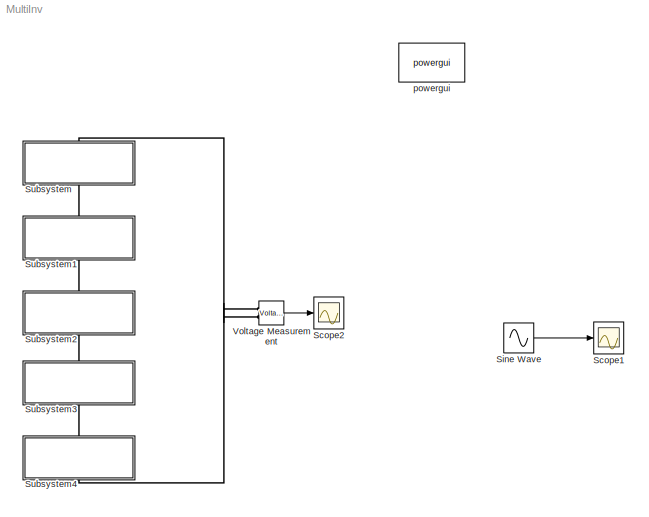
MODEL MultiInv
KIND model
BLOCK [Scope] Scope1
  DataFormat = StructureWithTime
  Floating = off
  MaxDataPoints = 5000000
  NumInputPorts = 1
  Ports = [1]
  SID = 317
  SampleTime = 0
  SaveName = sinwave
  SaveToWorkspace = on
BLOCK [Scope] Scope2
  DataFormat = StructureWithTime
  Floating = off
  MaxDataPoints = 5000000
  NumInputPorts = 1
  Ports = [1]
  SID = 282
  SampleTime = 0
  SaveName = OutVolt
  SaveToWorkspace = on
BLOCK [Sin] Sine Wave
  Amplitude = 60
  Frequency = 0.2*pi
  Ports = [0, 1]
  SID = 316
  SampleTime = 0
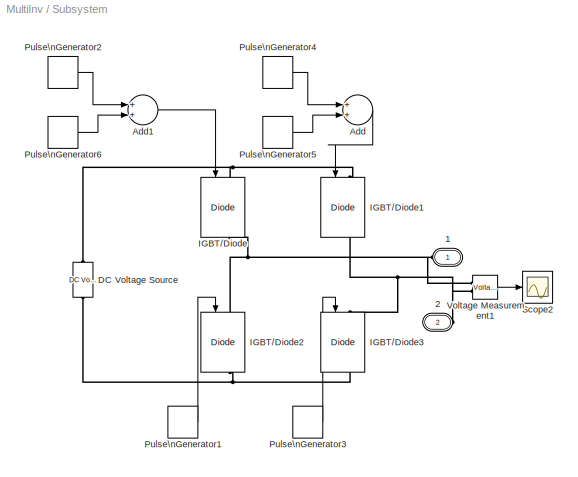
BLOCK [SubSystem] Subsystem
  FunctionWithSeparateData = off
  MaskHideContents = off
  MinAlgLoopOccurrences = off
  Opaque = off
  Ports = [0, 0, 0, 0, 0, 1, 1]
  PropExecContextOutsideSubsystem = off
  RTWSystemCode = Auto
  RequestExecContextInheritance = off
  SID = 202
BLOCK [PMIOPort] Subsystem/1
  Port = 1
  SID = 209
  Side = Left
  Tag = PMCPort
BLOCK [PMIOPort] Subsystem/2
  Port = 2
  SID = 210
  Side = Right
  Tag = PMCPort
BLOCK [Sum] Subsystem/Add
  InputSameDT = off
  OutDataTypeStr = Inherit: Inherit via internal rule
  Ports = [2, 1]
  SID = 176
  SaturateOnIntegerOverflow = off
BLOCK [Sum] Subsystem/Add1
  InputSameDT = off
  OutDataTypeStr = Inherit: Inherit via internal rule
  Ports = [2, 1]
  SID = 298
  SaturateOnIntegerOverflow = off
BLOCK [Reference] Subsystem/DC Voltage Source  REF=powerlib/Electrical\nSources/DC Voltage Source
  Amplitude = 12
  FunctionWithSeparateData = off
  GeneratePreprocessorConditionals = off
  Measurements = None
  Ports = [0, 0, 0, 0, 0, 1, 1]
  RTWMemSecDataConstants = Inherit from model
  RTWMemSecDataInternal = Inherit from model
  RTWMemSecDataParameters = Inherit from model
  RTWMemSecFuncExecute = Inherit from model
  RTWMemSecFuncInitTerm = Inherit from model
  SID = 122
  ShowPortLabels = FromPortIcon
  SourceBlock = powerlib/Electrical\nSources/DC Voltage Source
  SourceType = DC Voltage Source
  SystemSampleTime = -1
BLOCK [Reference] Subsystem/IGBT//Diode  REF=powerlib/Power\nElectronics/IGBT//Diode
  Cs = inf
  FunctionWithSeparateData = off
  GeneratePreprocessorConditionals = off
  Measurements = on
  Ports = [1, 1, 0, 0, 0, 1, 1]
  RTWMemSecDataConstants = Inherit from model
  RTWMemSecDataInternal = Inherit from model
  RTWMemSecDataParameters = Inherit from model
  RTWMemSecFuncExecute = Inherit from model
  RTWMemSecFuncInitTerm = Inherit from model
  Ron = 1e-3
  Rs = 1e5
  SID = 123
  ShowPortLabels = FromPortIcon
  SourceBlock = powerlib/Power\nElectronics/IGBT//Diode
  SourceType = IGBT/Diode
  SystemSampleTime = -1
BLOCK [Reference] Subsystem/IGBT//Diode1  REF=powerlib/Power\nElectronics/IGBT//Diode
  Cs = inf
  FunctionWithSeparateData = off
  GeneratePreprocessorConditionals = off
  Measurements = on
  Ports = [1, 1, 0, 0, 0, 1, 1]
  RTWMemSecDataConstants = Inherit from model
  RTWMemSecDataInternal = Inherit from model
  RTWMemSecDataParameters = Inherit from model
  RTWMemSecFuncExecute = Inherit from model
  RTWMemSecFuncInitTerm = Inherit from model
  Ron = 1e-3
  Rs = 1e5
  SID = 124
  ShowPortLabels = FromPortIcon
  SourceBlock = powerlib/Power\nElectronics/IGBT//Diode
  SourceType = IGBT/Diode
  SystemSampleTime = -1
BLOCK [Reference] Subsystem/IGBT//Diode2  REF=powerlib/Power\nElectronics/IGBT//Diode
  Cs = inf
  FunctionWithSeparateData = off
  GeneratePreprocessorConditionals = off
  Measurements = on
  Ports = [1, 1, 0, 0, 0, 1, 1]
  RTWMemSecDataConstants = Inherit from model
  RTWMemSecDataInternal = Inherit from model
  RTWMemSecDataParameters = Inherit from model
  RTWMemSecFuncExecute = Inherit from model
  RTWMemSecFuncInitTerm = Inherit from model
  Ron = 1e-3
  Rs = 1e5
  SID = 125
  ShowPortLabels = FromPortIcon
  SourceBlock = powerlib/Power\nElectronics/IGBT//Diode
  SourceType = IGBT/Diode
  SystemSampleTime = -1
BLOCK [Reference] Subsystem/IGBT//Diode3  REF=powerlib/Power\nElectronics/IGBT//Diode
  Cs = inf
  FunctionWithSeparateData = off
  GeneratePreprocessorConditionals = off
  Measurements = on
  Ports = [1, 1, 0, 0, 0, 1, 1]
  RTWMemSecDataConstants = Inherit from model
  RTWMemSecDataInternal = Inherit from model
  RTWMemSecDataParameters = Inherit from model
  RTWMemSecFuncExecute = Inherit from model
  RTWMemSecFuncInitTerm = Inherit from model
  Ron = 1e-3
  Rs = 1e5
  SID = 126
  ShowPortLabels = FromPortIcon
  SourceBlock = powerlib/Power\nElectronics/IGBT//Diode
  SourceType = IGBT/Diode
  SystemSampleTime = -1
BLOCK [DiscretePulseGenerator] Subsystem/Pulse\nGenerator1
  Period = t
  PhaseDelay = ((180+a)*t)/360
  Ports = [0, 1]
  PulseType = Time based
  PulseWidth = 50-((5*a)/9)
  SID = 128
BLOCK [DiscretePulseGenerator] Subsystem/Pulse\nGenerator2
  Period = t
  Ports = [0, 1]
  PulseType = Time based
  PulseWidth = 50+((5*a)/18)
  SID = 299
BLOCK [DiscretePulseGenerator] Subsystem/Pulse\nGenerator3
  Period = t
  PhaseDelay = (a*t)/360
  Ports = [0, 1]
  PulseType = Time based
  PulseWidth = 50-((5*a)/9)
  SID = 130
BLOCK [DiscretePulseGenerator] Subsystem/Pulse\nGenerator4
  Period = t
  Ports = [0, 1]
  PulseType = Time based
  PulseWidth = a/3.6
  SID = 177
BLOCK [DiscretePulseGenerator] Subsystem/Pulse\nGenerator5
  Period = t
  PhaseDelay = (180-a)*(t/360)
  Ports = [0, 1]
  PulseType = Time based
  PulseWidth = 50+((5*a)/18)
  SID = 178
BLOCK [DiscretePulseGenerator] Subsystem/Pulse\nGenerator6
  Period = t
  PhaseDelay = (360-a)*(t/360)
  Ports = [0, 1]
  PulseType = Time based
  PulseWidth = a/3.6
  SID = 300
BLOCK [Scope] Subsystem/Scope2
  DataFormat = StructureWithTime
  Floating = off
  NumInputPorts = 1
  Ports = [1]
  SID = 296
  SampleTime = 0
  SaveName = ScopeData6
  ZoomMode = yonly
BLOCK [Reference] Subsystem/Voltage Measurement1  REF=powerlib/Measurements/Voltage Measurement
  FunctionWithSeparateData = off
  GeneratePreprocessorConditionals = off
  OutputType = Complex
  PSBequivalent = 0
  PhasorSimulation = off
  Ports = [0, 1, 0, 0, 0, 2]
  RTWMemSecDataConstants = Inherit from model
  RTWMemSecDataInternal = Inherit from model
  RTWMemSecDataParameters = Inherit from model
  RTWMemSecFuncExecute = Inherit from model
  RTWMemSecFuncInitTerm = Inherit from model
  SID = 297
  ShowPortLabels = FromPortIcon
  SourceBlock = powerlib/Measurements/Voltage Measurement
  SourceType = Voltage Measurement
  SystemSampleTime = -1
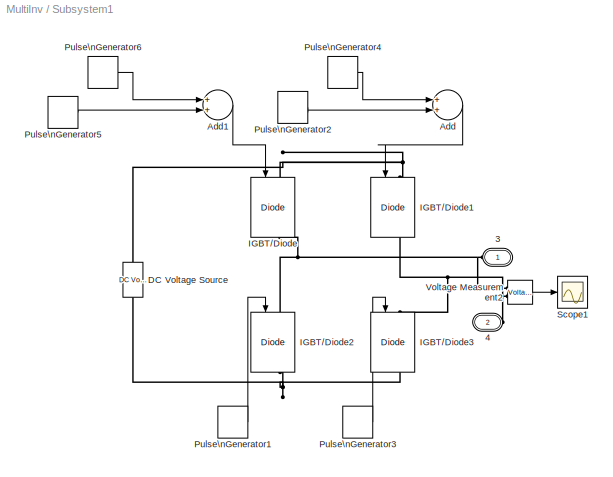
BLOCK [SubSystem] Subsystem1
  FunctionWithSeparateData = off
  MaskHideContents = off
  MinAlgLoopOccurrences = off
  Opaque = off
  Ports = [0, 0, 0, 0, 0, 1, 1]
  PropExecContextOutsideSubsystem = off
  RTWSystemCode = Auto
  RequestExecContextInheritance = off
  SID = 225
BLOCK [PMIOPort] Subsystem1/3
  Port = 1
  SID = 237
  Side = Left
  Tag = PMCPort
BLOCK [PMIOPort] Subsystem1/4
  Port = 2
  SID = 238
  Side = Right
  Tag = PMCPort
BLOCK [Sum] Subsystem1/Add
  InputSameDT = off
  OutDataTypeStr = Inherit: Inherit via internal rule
  Ports = [2, 1]
  SID = 226
  SaturateOnIntegerOverflow = off
BLOCK [Sum] Subsystem1/Add1
  InputSameDT = off
  OutDataTypeStr = Inherit: Inherit via internal rule
  Ports = [2, 1]
  SID = 304
  SaturateOnIntegerOverflow = off
BLOCK [Reference] Subsystem1/DC Voltage Source  REF=powerlib/Electrical\nSources/DC Voltage Source
  Amplitude = 12
  FunctionWithSeparateData = off
  GeneratePreprocessorConditionals = off
  Measurements = None
  Ports = [0, 0, 0, 0, 0, 1, 1]
  RTWMemSecDataConstants = Inherit from model
  RTWMemSecDataInternal = Inherit from model
  RTWMemSecDataParameters = Inherit from model
  RTWMemSecFuncExecute = Inherit from model
  RTWMemSecFuncInitTerm = Inherit from model
  SID = 227
  ShowPortLabels = FromPortIcon
  SourceBlock = powerlib/Electrical\nSources/DC Voltage Source
  SourceType = DC Voltage Source
  SystemSampleTime = -1
BLOCK [Reference] Subsystem1/IGBT//Diode  REF=powerlib/Power\nElectronics/IGBT//Diode
  Cs = inf
  FunctionWithSeparateData = off
  GeneratePreprocessorConditionals = off
  Measurements = on
  Ports = [1, 1, 0, 0, 0, 1, 1]
  RTWMemSecDataConstants = Inherit from model
  RTWMemSecDataInternal = Inherit from model
  RTWMemSecDataParameters = Inherit from model
  RTWMemSecFuncExecute = Inherit from model
  RTWMemSecFuncInitTerm = Inherit from model
  Ron = 1e-3
  Rs = 1e5
  SID = 228
  ShowPortLabels = FromPortIcon
  SourceBlock = powerlib/Power\nElectronics/IGBT//Diode
  SourceType = IGBT/Diode
  SystemSampleTime = -1
BLOCK [Reference] Subsystem1/IGBT//Diode1  REF=powerlib/Power\nElectronics/IGBT//Diode
  Cs = inf
  FunctionWithSeparateData = off
  GeneratePreprocessorConditionals = off
  Measurements = on
  Ports = [1, 1, 0, 0, 0, 1, 1]
  RTWMemSecDataConstants = Inherit from model
  RTWMemSecDataInternal = Inherit from model
  RTWMemSecDataParameters = Inherit from model
  RTWMemSecFuncExecute = Inherit from model
  RTWMemSecFuncInitTerm = Inherit from model
  Ron = 1e-3
  Rs = 1e5
  SID = 229
  ShowPortLabels = FromPortIcon
  SourceBlock = powerlib/Power\nElectronics/IGBT//Diode
  SourceType = IGBT/Diode
  SystemSampleTime = -1
BLOCK [Reference] Subsystem1/IGBT//Diode2  REF=powerlib/Power\nElectronics/IGBT//Diode
  Cs = inf
  FunctionWithSeparateData = off
  GeneratePreprocessorConditionals = off
  Measurements = on
  Ports = [1, 1, 0, 0, 0, 1, 1]
  RTWMemSecDataConstants = Inherit from model
  RTWMemSecDataInternal = Inherit from model
  RTWMemSecDataParameters = Inherit from model
  RTWMemSecFuncExecute = Inherit from model
  RTWMemSecFuncInitTerm = Inherit from model
  Ron = 1e-3
  Rs = 1e5
  SID = 230
  ShowPortLabels = FromPortIcon
  SourceBlock = powerlib/Power\nElectronics/IGBT//Diode
  SourceType = IGBT/Diode
  SystemSampleTime = -1
BLOCK [Reference] Subsystem1/IGBT//Diode3  REF=powerlib/Power\nElectronics/IGBT//Diode
  Cs = inf
  FunctionWithSeparateData = off
  GeneratePreprocessorConditionals = off
  Measurements = on
  Ports = [1, 1, 0, 0, 0, 1, 1]
  RTWMemSecDataConstants = Inherit from model
  RTWMemSecDataInternal = Inherit from model
  RTWMemSecDataParameters = Inherit from model
  RTWMemSecFuncExecute = Inherit from model
  RTWMemSecFuncInitTerm = Inherit from model
  Ron = 1e-3
  Rs = 1e5
  SID = 231
  ShowPortLabels = FromPortIcon
  SourceBlock = powerlib/Power\nElectronics/IGBT//Diode
  SourceType = IGBT/Diode
  SystemSampleTime = -1
BLOCK [DiscretePulseGenerator] Subsystem1/Pulse\nGenerator1
  Period = t
  PhaseDelay = ((180+b)*t)/360
  Ports = [0, 1]
  PulseType = Time based
  PulseWidth = 50-((5*b)/9)
  SID = 233
BLOCK [DiscretePulseGenerator] Subsystem1/Pulse\nGenerator2
  Period = t
  PhaseDelay = (180-b)*(t/360)
  Ports = [0, 1]
  PulseType = Time based
  PulseWidth = 50+((5*b)/18)
  SID = 236
BLOCK [DiscretePulseGenerator] Subsystem1/Pulse\nGenerator3
  Period = t
  PhaseDelay = (b*t)/360
  Ports = [0, 1]
  PulseType = Time based
  PulseWidth = 50-((5*b)/9)
  SID = 234
BLOCK [DiscretePulseGenerator] Subsystem1/Pulse\nGenerator4
  Period = t
  Ports = [0, 1]
  PulseType = Time based
  PulseWidth = b/3.6
  SID = 235
BLOCK [DiscretePulseGenerator] Subsystem1/Pulse\nGenerator5
  Period = t
  PhaseDelay = (360-b)*(t/360)
  Ports = [0, 1]
  PulseType = Time based
  PulseWidth = b/3.6
  SID = 305
BLOCK [DiscretePulseGenerator] Subsystem1/Pulse\nGenerator6
  Period = t
  Ports = [0, 1]
  PulseType = Time based
  PulseWidth = 50+((5*b)/18)
  SID = 306
BLOCK [Scope] Subsystem1/Scope1
  DataFormat = StructureWithTime
  Floating = off
  NumInputPorts = 1
  Ports = [1]
  SID = 294
  SampleTime = 0
  SaveName = ScopeData5
BLOCK [Reference] Subsystem1/Voltage Measurement2  REF=powerlib/Measurements/Voltage Measurement
  FunctionWithSeparateData = off
  GeneratePreprocessorConditionals = off
  OutputType = Complex
  PSBequivalent = 0
  PhasorSimulation = off
  Ports = [0, 1, 0, 0, 0, 2]
  RTWMemSecDataConstants = Inherit from model
  RTWMemSecDataInternal = Inherit from model
  RTWMemSecDataParameters = Inherit from model
  RTWMemSecFuncExecute = Inherit from model
  RTWMemSecFuncInitTerm = Inherit from model
  SID = 295
  ShowPortLabels = FromPortIcon
  SourceBlock = powerlib/Measurements/Voltage Measurement
  SourceType = Voltage Measurement
  SystemSampleTime = -1
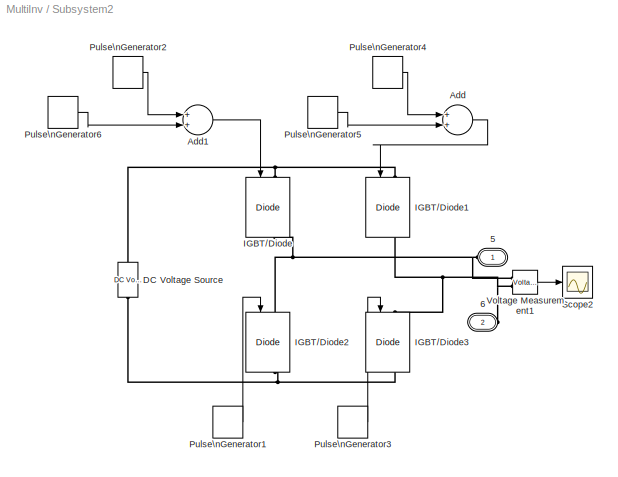
BLOCK [SubSystem] Subsystem2
  FunctionWithSeparateData = off
  MaskHideContents = off
  MinAlgLoopOccurrences = off
  Opaque = off
  Ports = [0, 0, 0, 0, 0, 1, 1]
  PropExecContextOutsideSubsystem = off
  RTWSystemCode = Auto
  RequestExecContextInheritance = off
  SID = 239
BLOCK [PMIOPort] Subsystem2/5
  Port = 1
  SID = 251
  Side = Left
  Tag = PMCPort
BLOCK [PMIOPort] Subsystem2/6
  Port = 2
  SID = 252
  Side = Right
  Tag = PMCPort
BLOCK [Sum] Subsystem2/Add
  InputSameDT = off
  OutDataTypeStr = Inherit: Inherit via internal rule
  Ports = [2, 1]
  SID = 240
  SaturateOnIntegerOverflow = off
BLOCK [Sum] Subsystem2/Add1
  InputSameDT = off
  OutDataTypeStr = Inherit: Inherit via internal rule
  Ports = [2, 1]
  SID = 307
  SaturateOnIntegerOverflow = off
BLOCK [Reference] Subsystem2/DC Voltage Source  REF=powerlib/Electrical\nSources/DC Voltage Source
  Amplitude = 12
  FunctionWithSeparateData = off
  GeneratePreprocessorConditionals = off
  Measurements = None
  Ports = [0, 0, 0, 0, 0, 1, 1]
  RTWMemSecDataConstants = Inherit from model
  RTWMemSecDataInternal = Inherit from model
  RTWMemSecDataParameters = Inherit from model
  RTWMemSecFuncExecute = Inherit from model
  RTWMemSecFuncInitTerm = Inherit from model
  SID = 241
  ShowPortLabels = FromPortIcon
  SourceBlock = powerlib/Electrical\nSources/DC Voltage Source
  SourceType = DC Voltage Source
  SystemSampleTime = -1
BLOCK [Reference] Subsystem2/IGBT//Diode  REF=powerlib/Power\nElectronics/IGBT//Diode
  Cs = inf
  FunctionWithSeparateData = off
  GeneratePreprocessorConditionals = off
  Measurements = on
  Ports = [1, 1, 0, 0, 0, 1, 1]
  RTWMemSecDataConstants = Inherit from model
  RTWMemSecDataInternal = Inherit from model
  RTWMemSecDataParameters = Inherit from model
  RTWMemSecFuncExecute = Inherit from model
  RTWMemSecFuncInitTerm = Inherit from model
  Ron = 1e-3
  Rs = 1e5
  SID = 242
  ShowPortLabels = FromPortIcon
  SourceBlock = powerlib/Power\nElectronics/IGBT//Diode
  SourceType = IGBT/Diode
  SystemSampleTime = -1
BLOCK [Reference] Subsystem2/IGBT//Diode1  REF=powerlib/Power\nElectronics/IGBT//Diode
  Cs = inf
  FunctionWithSeparateData = off
  GeneratePreprocessorConditionals = off
  Measurements = on
  Ports = [1, 1, 0, 0, 0, 1, 1]
  RTWMemSecDataConstants = Inherit from model
  RTWMemSecDataInternal = Inherit from model
  RTWMemSecDataParameters = Inherit from model
  RTWMemSecFuncExecute = Inherit from model
  RTWMemSecFuncInitTerm = Inherit from model
  Ron = 1e-3
  Rs = 1e5
  SID = 243
  ShowPortLabels = FromPortIcon
  SourceBlock = powerlib/Power\nElectronics/IGBT//Diode
  SourceType = IGBT/Diode
  SystemSampleTime = -1
BLOCK [Reference] Subsystem2/IGBT//Diode2  REF=powerlib/Power\nElectronics/IGBT//Diode
  Cs = inf
  FunctionWithSeparateData = off
  GeneratePreprocessorConditionals = off
  Measurements = on
  Ports = [1, 1, 0, 0, 0, 1, 1]
  RTWMemSecDataConstants = Inherit from model
  RTWMemSecDataInternal = Inherit from model
  RTWMemSecDataParameters = Inherit from model
  RTWMemSecFuncExecute = Inherit from model
  RTWMemSecFuncInitTerm = Inherit from model
  Ron = 1e-3
  Rs = 1e5
  SID = 244
  ShowPortLabels = FromPortIcon
  SourceBlock = powerlib/Power\nElectronics/IGBT//Diode
  SourceType = IGBT/Diode
  SystemSampleTime = -1
BLOCK [Reference] Subsystem2/IGBT//Diode3  REF=powerlib/Power\nElectronics/IGBT//Diode
  Cs = inf
  FunctionWithSeparateData = off
  GeneratePreprocessorConditionals = off
  Measurements = on
  Ports = [1, 1, 0, 0, 0, 1, 1]
  RTWMemSecDataConstants = Inherit from model
  RTWMemSecDataInternal = Inherit from model
  RTWMemSecDataParameters = Inherit from model
  RTWMemSecFuncExecute = Inherit from model
  RTWMemSecFuncInitTerm = Inherit from model
  Ron = 1e-3
  Rs = 1e5
  SID = 245
  ShowPortLabels = FromPortIcon
  SourceBlock = powerlib/Power\nElectronics/IGBT//Diode
  SourceType = IGBT/Diode
  SystemSampleTime = -1
BLOCK [DiscretePulseGenerator] Subsystem2/Pulse\nGenerator1
  Period = t
  PhaseDelay = ((180+c)*t)/360
  Ports = [0, 1]
  PulseType = Time based
  PulseWidth = 50-((5*c)/9)
  SID = 247
BLOCK [DiscretePulseGenerator] Subsystem2/Pulse\nGenerator2
  Period = t
  Ports = [0, 1]
  PulseType = Time based
  PulseWidth = 50+((5*c)/18)
  SID = 308
BLOCK [DiscretePulseGenerator] Subsystem2/Pulse\nGenerator3
  Period = t
  PhaseDelay = (c*t)/360
  Ports = [0, 1]
  PulseType = Time based
  PulseWidth = 50-((5*c)/9)
  SID = 248
BLOCK [DiscretePulseGenerator] Subsystem2/Pulse\nGenerator4
  Period = t
  Ports = [0, 1]
  PulseType = Time based
  PulseWidth = c/3.6
  SID = 249
BLOCK [DiscretePulseGenerator] Subsystem2/Pulse\nGenerator5
  Period = t
  PhaseDelay = (180-c)*(t/360)
  Ports = [0, 1]
  PulseType = Time based
  PulseWidth = 50+((5*c)/18)
  SID = 250
BLOCK [DiscretePulseGenerator] Subsystem2/Pulse\nGenerator6
  Period = t
  PhaseDelay = (360-c)*(t/360)
  Ports = [0, 1]
  PulseType = Time based
  PulseWidth = c/3.6
  SID = 309
BLOCK [Scope] Subsystem2/Scope2
  DataFormat = StructureWithTime
  Floating = off
  NumInputPorts = 1
  Ports = [1]
  SID = 290
  SampleTime = 0
  SaveName = ScopeData3
BLOCK [Reference] Subsystem2/Voltage Measurement1  REF=powerlib/Measurements/Voltage Measurement
  FunctionWithSeparateData = off
  GeneratePreprocessorConditionals = off
  OutputType = Complex
  PSBequivalent = 0
  PhasorSimulation = off
  Ports = [0, 1, 0, 0, 0, 2]
  RTWMemSecDataConstants = Inherit from model
  RTWMemSecDataInternal = Inherit from model
  RTWMemSecDataParameters = Inherit from model
  RTWMemSecFuncExecute = Inherit from model
  RTWMemSecFuncInitTerm = Inherit from model
  SID = 291
  ShowPortLabels = FromPortIcon
  SourceBlock = powerlib/Measurements/Voltage Measurement
  SourceType = Voltage Measurement
  SystemSampleTime = -1
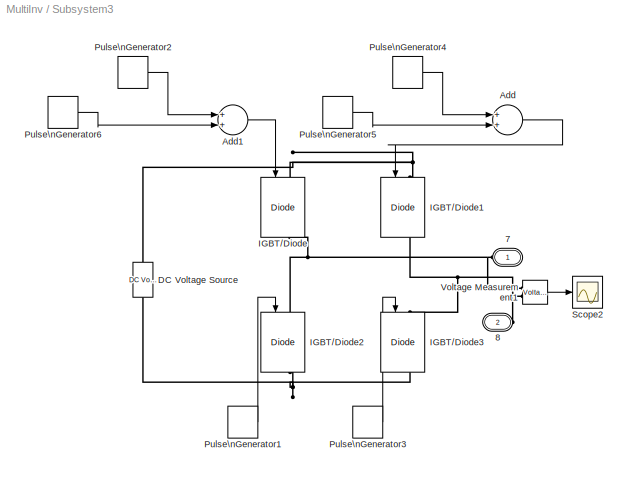
BLOCK [SubSystem] Subsystem3
  FunctionWithSeparateData = off
  MaskHideContents = off
  MinAlgLoopOccurrences = off
  Opaque = off
  Ports = [0, 0, 0, 0, 0, 1, 1]
  PropExecContextOutsideSubsystem = off
  RTWSystemCode = Auto
  RequestExecContextInheritance = off
  SID = 253
BLOCK [PMIOPort] Subsystem3/7
  Port = 1
  SID = 265
  Side = Left
  Tag = PMCPort
BLOCK [PMIOPort] Subsystem3/8
  Port = 2
  SID = 266
  Side = Right
  Tag = PMCPort
BLOCK [Sum] Subsystem3/Add
  InputSameDT = off
  OutDataTypeStr = Inherit: Inherit via internal rule
  Ports = [2, 1]
  SID = 254
  SaturateOnIntegerOverflow = off
BLOCK [Sum] Subsystem3/Add1
  InputSameDT = off
  OutDataTypeStr = Inherit: Inherit via internal rule
  Ports = [2, 1]
  SID = 310
  SaturateOnIntegerOverflow = off
BLOCK [Reference] Subsystem3/DC Voltage Source  REF=powerlib/Electrical\nSources/DC Voltage Source
  Amplitude = 12
  FunctionWithSeparateData = off
  GeneratePreprocessorConditionals = off
  Measurements = None
  Ports = [0, 0, 0, 0, 0, 1, 1]
  RTWMemSecDataConstants = Inherit from model
  RTWMemSecDataInternal = Inherit from model
  RTWMemSecDataParameters = Inherit from model
  RTWMemSecFuncExecute = Inherit from model
  RTWMemSecFuncInitTerm = Inherit from model
  SID = 255
  ShowPortLabels = FromPortIcon
  SourceBlock = powerlib/Electrical\nSources/DC Voltage Source
  SourceType = DC Voltage Source
  SystemSampleTime = -1
BLOCK [Reference] Subsystem3/IGBT//Diode  REF=powerlib/Power\nElectronics/IGBT//Diode
  Cs = inf
  FunctionWithSeparateData = off
  GeneratePreprocessorConditionals = off
  Measurements = on
  Ports = [1, 1, 0, 0, 0, 1, 1]
  RTWMemSecDataConstants = Inherit from model
  RTWMemSecDataInternal = Inherit from model
  RTWMemSecDataParameters = Inherit from model
  RTWMemSecFuncExecute = Inherit from model
  RTWMemSecFuncInitTerm = Inherit from model
  Ron = 1e-3
  Rs = 1e5
  SID = 256
  ShowPortLabels = FromPortIcon
  SourceBlock = powerlib/Power\nElectronics/IGBT//Diode
  SourceType = IGBT/Diode
  SystemSampleTime = -1
BLOCK [Reference] Subsystem3/IGBT//Diode1  REF=powerlib/Power\nElectronics/IGBT//Diode
  Cs = inf
  FunctionWithSeparateData = off
  GeneratePreprocessorConditionals = off
  Measurements = on
  Ports = [1, 1, 0, 0, 0, 1, 1]
  RTWMemSecDataConstants = Inherit from model
  RTWMemSecDataInternal = Inherit from model
  RTWMemSecDataParameters = Inherit from model
  RTWMemSecFuncExecute = Inherit from model
  RTWMemSecFuncInitTerm = Inherit from model
  Ron = 1e-3
  Rs = 1e5
  SID = 257
  ShowPortLabels = FromPortIcon
  SourceBlock = powerlib/Power\nElectronics/IGBT//Diode
  SourceType = IGBT/Diode
  SystemSampleTime = -1
BLOCK [Reference] Subsystem3/IGBT//Diode2  REF=powerlib/Power\nElectronics/IGBT//Diode
  Cs = inf
  FunctionWithSeparateData = off
  GeneratePreprocessorConditionals = off
  Measurements = on
  Ports = [1, 1, 0, 0, 0, 1, 1]
  RTWMemSecDataConstants = Inherit from model
  RTWMemSecDataInternal = Inherit from model
  RTWMemSecDataParameters = Inherit from model
  RTWMemSecFuncExecute = Inherit from model
  RTWMemSecFuncInitTerm = Inherit from model
  Ron = 1e-3
  Rs = 1e5
  SID = 258
  ShowPortLabels = FromPortIcon
  SourceBlock = powerlib/Power\nElectronics/IGBT//Diode
  SourceType = IGBT/Diode
  SystemSampleTime = -1
BLOCK [Reference] Subsystem3/IGBT//Diode3  REF=powerlib/Power\nElectronics/IGBT//Diode
  Cs = inf
  FunctionWithSeparateData = off
  GeneratePreprocessorConditionals = off
  Measurements = on
  Ports = [1, 1, 0, 0, 0, 1, 1]
  RTWMemSecDataConstants = Inherit from model
  RTWMemSecDataInternal = Inherit from model
  RTWMemSecDataParameters = Inherit from model
  RTWMemSecFuncExecute = Inherit from model
  RTWMemSecFuncInitTerm = Inherit from model
  Ron = 1e-3
  Rs = 1e5
  SID = 259
  ShowPortLabels = FromPortIcon
  SourceBlock = powerlib/Power\nElectronics/IGBT//Diode
  SourceType = IGBT/Diode
  SystemSampleTime = -1
BLOCK [DiscretePulseGenerator] Subsystem3/Pulse\nGenerator1
  Period = t
  PhaseDelay = ((180+d)*t)/360
  Ports = [0, 1]
  PulseType = Time based
  PulseWidth = 50-((5*d)/9)
  SID = 261
BLOCK [DiscretePulseGenerator] Subsystem3/Pulse\nGenerator2
  Period = t
  Ports = [0, 1]
  PulseType = Time based
  PulseWidth = 50+((5*d)/18)
  SID = 311
BLOCK [DiscretePulseGenerator] Subsystem3/Pulse\nGenerator3
  Period = t
  PhaseDelay = (d*t)/360
  Ports = [0, 1]
  PulseType = Time based
  PulseWidth = 50-((5*d)/9)
  SID = 262
BLOCK [DiscretePulseGenerator] Subsystem3/Pulse\nGenerator4
  Period = t
  Ports = [0, 1]
  PulseType = Time based
  PulseWidth = d/3.6
  SID = 263
BLOCK [DiscretePulseGenerator] Subsystem3/Pulse\nGenerator5
  Period = t
  PhaseDelay = (180-d)*(t/360)
  Ports = [0, 1]
  PulseType = Time based
  PulseWidth = 50+((5*d)/18)
  SID = 264
BLOCK [DiscretePulseGenerator] Subsystem3/Pulse\nGenerator6
  Period = t
  PhaseDelay = (360-d)*(t/360)
  Ports = [0, 1]
  PulseType = Time based
  PulseWidth = d/3.6
  SID = 312
BLOCK [Scope] Subsystem3/Scope2
  DataFormat = StructureWithTime
  Floating = off
  NumInputPorts = 1
  Ports = [1]
  SID = 286
  SampleTime = 0
  SaveName = ScopeData2
BLOCK [Reference] Subsystem3/Voltage Measurement1  REF=powerlib/Measurements/Voltage Measurement
  FunctionWithSeparateData = off
  GeneratePreprocessorConditionals = off
  OutputType = Complex
  PSBequivalent = 0
  PhasorSimulation = off
  Ports = [0, 1, 0, 0, 0, 2]
  RTWMemSecDataConstants = Inherit from model
  RTWMemSecDataInternal = Inherit from model
  RTWMemSecDataParameters = Inherit from model
  RTWMemSecFuncExecute = Inherit from model
  RTWMemSecFuncInitTerm = Inherit from model
  SID = 287
  ShowPortLabels = FromPortIcon
  SourceBlock = powerlib/Measurements/Voltage Measurement
  SourceType = Voltage Measurement
  SystemSampleTime = -1
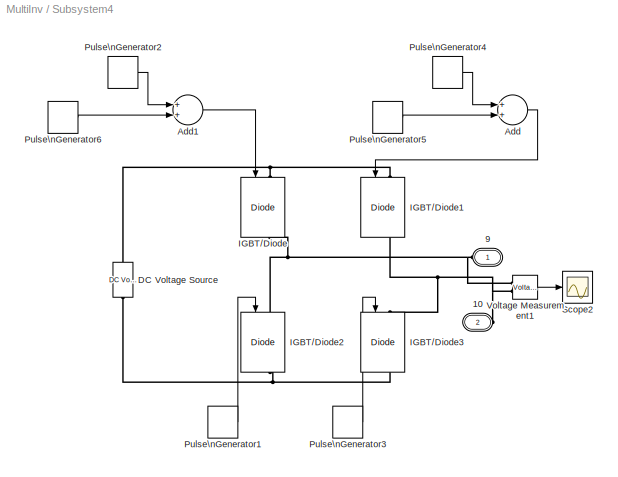
BLOCK [SubSystem] Subsystem4
  FunctionWithSeparateData = off
  MaskHideContents = off
  MinAlgLoopOccurrences = off
  Opaque = off
  Ports = [0, 0, 0, 0, 0, 1, 1]
  PropExecContextOutsideSubsystem = off
  RTWSystemCode = Auto
  RequestExecContextInheritance = off
  SID = 267
BLOCK [PMIOPort] Subsystem4/10
  Port = 2
  SID = 280
  Side = Right
  Tag = PMCPort
BLOCK [PMIOPort] Subsystem4/9
  Port = 1
  SID = 279
  Side = Left
  Tag = PMCPort
BLOCK [Sum] Subsystem4/Add
  InputSameDT = off
  OutDataTypeStr = Inherit: Inherit via internal rule
  Ports = [2, 1]
  SID = 268
  SaturateOnIntegerOverflow = off
BLOCK [Sum] Subsystem4/Add1
  InputSameDT = off
  OutDataTypeStr = Inherit: Inherit via internal rule
  Ports = [2, 1]
  SID = 313
  SaturateOnIntegerOverflow = off
BLOCK [Reference] Subsystem4/DC Voltage Source  REF=powerlib/Electrical\nSources/DC Voltage Source
  Amplitude = 12
  FunctionWithSeparateData = off
  GeneratePreprocessorConditionals = off
  Measurements = None
  Ports = [0, 0, 0, 0, 0, 1, 1]
  RTWMemSecDataConstants = Inherit from model
  RTWMemSecDataInternal = Inherit from model
  RTWMemSecDataParameters = Inherit from model
  RTWMemSecFuncExecute = Inherit from model
  RTWMemSecFuncInitTerm = Inherit from model
  SID = 269
  ShowPortLabels = FromPortIcon
  SourceBlock = powerlib/Electrical\nSources/DC Voltage Source
  SourceType = DC Voltage Source
  SystemSampleTime = -1
BLOCK [Reference] Subsystem4/IGBT//Diode  REF=powerlib/Power\nElectronics/IGBT//Diode
  Cs = inf
  FunctionWithSeparateData = off
  GeneratePreprocessorConditionals = off
  Measurements = on
  Ports = [1, 1, 0, 0, 0, 1, 1]
  RTWMemSecDataConstants = Inherit from model
  RTWMemSecDataInternal = Inherit from model
  RTWMemSecDataParameters = Inherit from model
  RTWMemSecFuncExecute = Inherit from model
  RTWMemSecFuncInitTerm = Inherit from model
  Ron = 1e-3
  Rs = 1e5
  SID = 270
  ShowPortLabels = FromPortIcon
  SourceBlock = powerlib/Power\nElectronics/IGBT//Diode
  SourceType = IGBT/Diode
  SystemSampleTime = -1
BLOCK [Reference] Subsystem4/IGBT//Diode1  REF=powerlib/Power\nElectronics/IGBT//Diode
  Cs = inf
  FunctionWithSeparateData = off
  GeneratePreprocessorConditionals = off
  Measurements = on
  Ports = [1, 1, 0, 0, 0, 1, 1]
  RTWMemSecDataConstants = Inherit from model
  RTWMemSecDataInternal = Inherit from model
  RTWMemSecDataParameters = Inherit from model
  RTWMemSecFuncExecute = Inherit from model
  RTWMemSecFuncInitTerm = Inherit from model
  Ron = 1e-3
  Rs = 1e5
  SID = 271
  ShowPortLabels = FromPortIcon
  SourceBlock = powerlib/Power\nElectronics/IGBT//Diode
  SourceType = IGBT/Diode
  SystemSampleTime = -1
BLOCK [Reference] Subsystem4/IGBT//Diode2  REF=powerlib/Power\nElectronics/IGBT//Diode
  Cs = inf
  FunctionWithSeparateData = off
  GeneratePreprocessorConditionals = off
  Measurements = on
  Ports = [1, 1, 0, 0, 0, 1, 1]
  RTWMemSecDataConstants = Inherit from model
  RTWMemSecDataInternal = Inherit from model
  RTWMemSecDataParameters = Inherit from model
  RTWMemSecFuncExecute = Inherit from model
  RTWMemSecFuncInitTerm = Inherit from model
  Ron = 1e-3
  Rs = 1e5
  SID = 272
  ShowPortLabels = FromPortIcon
  SourceBlock = powerlib/Power\nElectronics/IGBT//Diode
  SourceType = IGBT/Diode
  SystemSampleTime = -1
BLOCK [Reference] Subsystem4/IGBT//Diode3  REF=powerlib/Power\nElectronics/IGBT//Diode
  Cs = inf
  FunctionWithSeparateData = off
  GeneratePreprocessorConditionals = off
  Measurements = on
  Ports = [1, 1, 0, 0, 0, 1, 1]
  RTWMemSecDataConstants = Inherit from model
  RTWMemSecDataInternal = Inherit from model
  RTWMemSecDataParameters = Inherit from model
  RTWMemSecFuncExecute = Inherit from model
  RTWMemSecFuncInitTerm = Inherit from model
  Ron = 1e-3
  Rs = 1e5
  SID = 273
  ShowPortLabels = FromPortIcon
  SourceBlock = powerlib/Power\nElectronics/IGBT//Diode
  SourceType = IGBT/Diode
  SystemSampleTime = -1
BLOCK [DiscretePulseGenerator] Subsystem4/Pulse\nGenerator1
  Period = t
  PhaseDelay = ((180+e)*t)/360
  Ports = [0, 1]
  PulseType = Time based
  PulseWidth = 50-((5*e)/9)
  SID = 275
BLOCK [DiscretePulseGenerator] Subsystem4/Pulse\nGenerator2
  Period = t
  Ports = [0, 1]
  PulseType = Time based
  PulseWidth = 50+((5*e)/18)
  SID = 314
BLOCK [DiscretePulseGenerator] Subsystem4/Pulse\nGenerator3
  Period = t
  PhaseDelay = (e*t)/360
  Ports = [0, 1]
  PulseType = Time based
  PulseWidth = 50-((5*e)/9)
  SID = 276
BLOCK [DiscretePulseGenerator] Subsystem4/Pulse\nGenerator4
  Period = t
  Ports = [0, 1]
  PulseType = Time based
  PulseWidth = e/3.6
  SID = 277
BLOCK [DiscretePulseGenerator] Subsystem4/Pulse\nGenerator5
  Period = t
  PhaseDelay = (180-e)*(t/360)
  Ports = [0, 1]
  PulseType = Time based
  PulseWidth = 50+((5*e)/18)
  SID = 278
BLOCK [DiscretePulseGenerator] Subsystem4/Pulse\nGenerator6
  Period = t
  PhaseDelay = (360-e)*(t/360)
  Ports = [0, 1]
  PulseType = Time based
  PulseWidth = e/3.6
  SID = 315
BLOCK [Scope] Subsystem4/Scope2
  DataFormat = StructureWithTime
  Floating = off
  NumInputPorts = 1
  Ports = [1]
  SID = 285
  SampleTime = 0
  SaveName = ScopeData1
BLOCK [Reference] Subsystem4/Voltage Measurement1  REF=powerlib/Measurements/Voltage Measurement
  FunctionWithSeparateData = off
  GeneratePreprocessorConditionals = off
  OutputType = Complex
  PSBequivalent = 0
  PhasorSimulation = off
  Ports = [0, 1, 0, 0, 0, 2]
  RTWMemSecDataConstants = Inherit from model
  RTWMemSecDataInternal = Inherit from model
  RTWMemSecDataParameters = Inherit from model
  RTWMemSecFuncExecute = Inherit from model
  RTWMemSecFuncInitTerm = Inherit from model
  SID = 284
  ShowPortLabels = FromPortIcon
  SourceBlock = powerlib/Measurements/Voltage Measurement
  SourceType = Voltage Measurement
  SystemSampleTime = -1
BLOCK [Reference] Voltage Measurement  REF=powerlib/Measurements/Voltage Measurement
  FunctionWithSeparateData = off
  GeneratePreprocessorConditionals = off
  OutputType = Complex
  PSBequivalent = 0
  PhasorSimulation = off
  Ports = [0, 1, 0, 0, 0, 2]
  RTWMemSecDataConstants = Inherit from model
  RTWMemSecDataInternal = Inherit from model
  RTWMemSecDataParameters = Inherit from model
  RTWMemSecFuncExecute = Inherit from model
  RTWMemSecFuncInitTerm = Inherit from model
  SID = 281
  ShowPortLabels = FromPortIcon
  SourceBlock = powerlib/Measurements/Voltage Measurement
  SourceType = Voltage Measurement
  SystemSampleTime = -1
BLOCK [Reference] powergui  REF=powerlib/powergui
  DisableRonSwitches = off
  DisableSnubberDevices = off
  DisableVfSwitches = off
  DisplayEquations = off
  DisplayStyle = 2
  EnableUseOfTLC = off
  ErrMax = 1e-4
  FreqAxis = off
  FunctionMessages = off
  FunctionWithSeparateData = off
  GeneratePreprocessorConditionals = off
  HookPort = off
  Interpol = off
  Iterations = 50
  MaxFrequency = 1000
  Pbase = 100e6
  Ports = []
  Priority = 1
  RTWMemSecDataConstants = Inherit from model
  RTWMemSecDataInternal = Inherit from model
  RTWMemSecDataParameters = Inherit from model
  RTWMemSecFuncExecute = Inherit from model
  RTWMemSecFuncInitTerm = Inherit from model
  ResistiveCurrentMeasurement = off
  RestoreLinks = warning
  SID = 13
  SPID = off
  SampleTime = 50e-6
  ShowGrid = off
  ShowPortLabels = FromPortIcon
  SourceBlock = powerlib/powergui
  SourceType = PSB option menu block
  StartTime = 0.01
  SwTol = 0
  SystemSampleTime = -1
  UnitsV = kV
  UnitsW = MW
  UserData = DataTag0
  UserDataPersistent = on
  Xlog = on
  Ylog = off
  ZoomFFT = off
  cycles = 2
  display = off
  echomessages = off
  frequency = 60
  frequencyindice = 0
  frequencyindicesteady = 1
  fundamental = 50
  methode = off
  save = off
  structure = OutVolt
  variable = ZData
  x0status = blocks
LINE Sine Wave:1 -> Scope1:1
LINE Subsystem/Add1:1 -> Subsystem/IGBT//Diode:1
LINE Subsystem/Add:1 -> Subsystem/IGBT//Diode1:1
LINE Subsystem/Pulse\nGenerator1:1 -> Subsystem/IGBT//Diode2:1
LINE Subsystem/Pulse\nGenerator2:1 -> Subsystem/Add1:1
LINE Subsystem/Pulse\nGenerator3:1 -> Subsystem/IGBT//Diode3:1
LINE Subsystem/Pulse\nGenerator4:1 -> Subsystem/Add:1
LINE Subsystem/Pulse\nGenerator5:1 -> Subsystem/Add:2
LINE Subsystem/Pulse\nGenerator6:1 -> Subsystem/Add1:2
LINE Subsystem/Voltage Measurement1:1 -> Subsystem/Scope2:1
LINE Subsystem1/Add1:1 -> Subsystem1/IGBT//Diode:1
LINE Subsystem1/Add:1 -> Subsystem1/IGBT//Diode1:1
LINE Subsystem1/Pulse\nGenerator1:1 -> Subsystem1/IGBT//Diode2:1
LINE Subsystem1/Pulse\nGenerator2:1 -> Subsystem1/Add:2
LINE Subsystem1/Pulse\nGenerator3:1 -> Subsystem1/IGBT//Diode3:1
LINE Subsystem1/Pulse\nGenerator4:1 -> Subsystem1/Add:1
LINE Subsystem1/Pulse\nGenerator5:1 -> Subsystem1/Add1:2
LINE Subsystem1/Pulse\nGenerator6:1 -> Subsystem1/Add1:1
LINE Subsystem1/Voltage Measurement2:1 -> Subsystem1/Scope1:1
LINE Subsystem2/Add1:1 -> Subsystem2/IGBT//Diode:1
LINE Subsystem2/Add:1 -> Subsystem2/IGBT//Diode1:1
LINE Subsystem2/Pulse\nGenerator1:1 -> Subsystem2/IGBT//Diode2:1
LINE Subsystem2/Pulse\nGenerator2:1 -> Subsystem2/Add1:1
LINE Subsystem2/Pulse\nGenerator3:1 -> Subsystem2/IGBT//Diode3:1
LINE Subsystem2/Pulse\nGenerator4:1 -> Subsystem2/Add:1
LINE Subsystem2/Pulse\nGenerator5:1 -> Subsystem2/Add:2
LINE Subsystem2/Pulse\nGenerator6:1 -> Subsystem2/Add1:2
LINE Subsystem2/Voltage Measurement1:1 -> Subsystem2/Scope2:1
LINE Subsystem3/Add1:1 -> Subsystem3/IGBT//Diode:1
LINE Subsystem3/Add:1 -> Subsystem3/IGBT//Diode1:1
LINE Subsystem3/Pulse\nGenerator1:1 -> Subsystem3/IGBT//Diode2:1
LINE Subsystem3/Pulse\nGenerator2:1 -> Subsystem3/Add1:1
LINE Subsystem3/Pulse\nGenerator3:1 -> Subsystem3/IGBT//Diode3:1
LINE Subsystem3/Pulse\nGenerator4:1 -> Subsystem3/Add:1
LINE Subsystem3/Pulse\nGenerator5:1 -> Subsystem3/Add:2
LINE Subsystem3/Pulse\nGenerator6:1 -> Subsystem3/Add1:2
LINE Subsystem3/Voltage Measurement1:1 -> Subsystem3/Scope2:1
LINE Subsystem4/Add1:1 -> Subsystem4/IGBT//Diode:1
LINE Subsystem4/Add:1 -> Subsystem4/IGBT//Diode1:1
LINE Subsystem4/Pulse\nGenerator1:1 -> Subsystem4/IGBT//Diode2:1
LINE Subsystem4/Pulse\nGenerator2:1 -> Subsystem4/Add1:1
LINE Subsystem4/Pulse\nGenerator3:1 -> Subsystem4/IGBT//Diode3:1
LINE Subsystem4/Pulse\nGenerator4:1 -> Subsystem4/Add:1
LINE Subsystem4/Pulse\nGenerator5:1 -> Subsystem4/Add:2
LINE Subsystem4/Pulse\nGenerator6:1 -> Subsystem4/Add1:2
LINE Subsystem4/Voltage Measurement1:1 -> Subsystem4/Scope2:1
LINE Voltage Measurement:1 -> Scope2:1
PNET net1: Subsystem/1:RConn1 -- Subsystem/IGBT//Diode2:LConn1 -- Subsystem/IGBT//Diode:RConn1 -- Subsystem/Voltage Measurement1:LConn1
PNET net2: Subsystem/2:RConn1 -- Subsystem/IGBT//Diode1:RConn1 -- Subsystem/IGBT//Diode3:LConn1 -- Subsystem/Voltage Measurement1:LConn2
PNET net3: Subsystem/DC Voltage Source:LConn1 -- Subsystem/IGBT//Diode2:RConn1 -- Subsystem/IGBT//Diode3:RConn1
PNET net4: Subsystem/DC Voltage Source:RConn1 -- Subsystem/IGBT//Diode1:LConn1 -- Subsystem/IGBT//Diode:LConn1
PNET net5: Subsystem1/3:RConn1 -- Subsystem1/IGBT//Diode2:LConn1 -- Subsystem1/IGBT//Diode:RConn1 -- Subsystem1/Voltage Measurement2:LConn1
PNET net6: Subsystem1/4:RConn1 -- Subsystem1/IGBT//Diode1:RConn1 -- Subsystem1/IGBT//Diode3:LConn1 -- Subsystem1/Voltage Measurement2:LConn2
PNET net7: Subsystem1/DC Voltage Source:LConn1 -- Subsystem1/IGBT//Diode2:RConn1 -- Subsystem1/IGBT//Diode3:RConn1
PNET net8: Subsystem1/DC Voltage Source:RConn1 -- Subsystem1/IGBT//Diode1:LConn1 -- Subsystem1/IGBT//Diode:LConn1
PLINE Subsystem1:LConn1 -- Subsystem:RConn1
PLINE Subsystem1:RConn1 -- Subsystem2:LConn1
PNET net9: Subsystem2/5:RConn1 -- Subsystem2/IGBT//Diode2:LConn1 -- Subsystem2/IGBT//Diode:RConn1 -- Subsystem2/Voltage Measurement1:LConn1
PNET net10: Subsystem2/6:RConn1 -- Subsystem2/IGBT//Diode1:RConn1 -- Subsystem2/IGBT//Diode3:LConn1 -- Subsystem2/Voltage Measurement1:LConn2
PNET net11: Subsystem2/DC Voltage Source:LConn1 -- Subsystem2/IGBT//Diode2:RConn1 -- Subsystem2/IGBT//Diode3:RConn1
PNET net12: Subsystem2/DC Voltage Source:RConn1 -- Subsystem2/IGBT//Diode1:LConn1 -- Subsystem2/IGBT//Diode:LConn1
PLINE Subsystem2:RConn1 -- Subsystem3:LConn1
PNET net13: Subsystem3/7:RConn1 -- Subsystem3/IGBT//Diode2:LConn1 -- Subsystem3/IGBT//Diode:RConn1 -- Subsystem3/Voltage Measurement1:LConn1
PNET net14: Subsystem3/8:RConn1 -- Subsystem3/IGBT//Diode1:RConn1 -- Subsystem3/IGBT//Diode3:LConn1 -- Subsystem3/Voltage Measurement1:LConn2
PNET net15: Subsystem3/DC Voltage Source:LConn1 -- Subsystem3/IGBT//Diode2:RConn1 -- Subsystem3/IGBT//Diode3:RConn1
PNET net16: Subsystem3/DC Voltage Source:RConn1 -- Subsystem3/IGBT//Diode1:LConn1 -- Subsystem3/IGBT//Diode:LConn1
PLINE Subsystem3:RConn1 -- Subsystem4:LConn1
PNET net17: Subsystem4/10:RConn1 -- Subsystem4/IGBT//Diode1:RConn1 -- Subsystem4/IGBT//Diode3:LConn1 -- Subsystem4/Voltage Measurement1:LConn2
PNET net18: Subsystem4/9:RConn1 -- Subsystem4/IGBT//Diode2:LConn1 -- Subsystem4/IGBT//Diode:RConn1 -- Subsystem4/Voltage Measurement1:LConn1
PNET net19: Subsystem4/DC Voltage Source:LConn1 -- Subsystem4/IGBT//Diode2:RConn1 -- Subsystem4/IGBT//Diode3:RConn1
PNET net20: Subsystem4/DC Voltage Source:RConn1 -- Subsystem4/IGBT//Diode1:LConn1 -- Subsystem4/IGBT//Diode:LConn1
PLINE Subsystem4:RConn1 -- Voltage Measurement:LConn2
PLINE Subsystem:LConn1 -- Voltage Measurement:LConn1
note: PNET lines group multi-terminal physical nets as a canonical sorted terminal list (undirected conserving connections); 2-terminal nets keep the pairwise PLINE form
